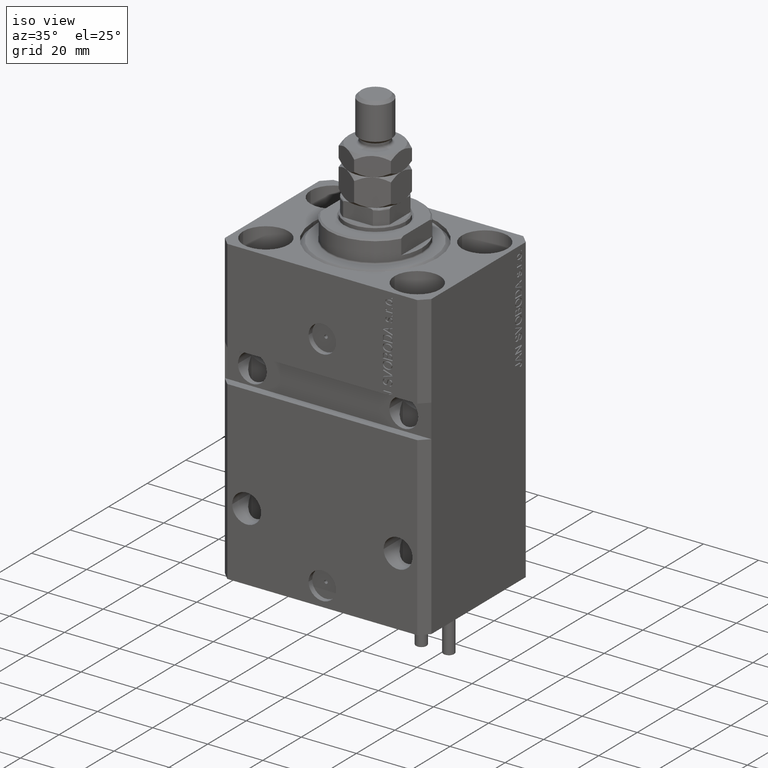
[diagram: clean part render]
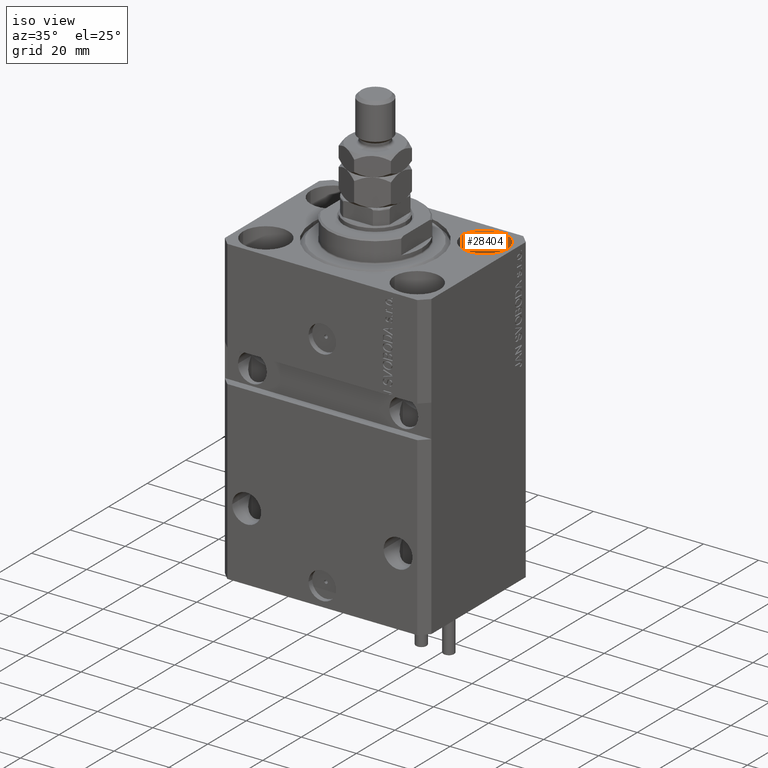
[diagram: same view with one face highlighted and labeled with its STEP entity id]
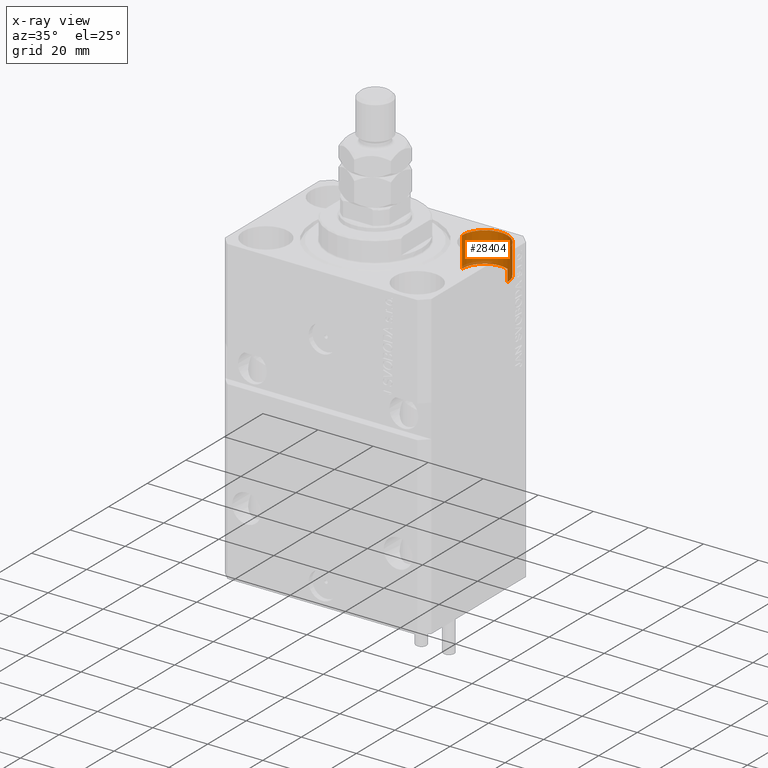
[diagram: x-ray of the same camera — body ghosted, the highlighted face saturated]
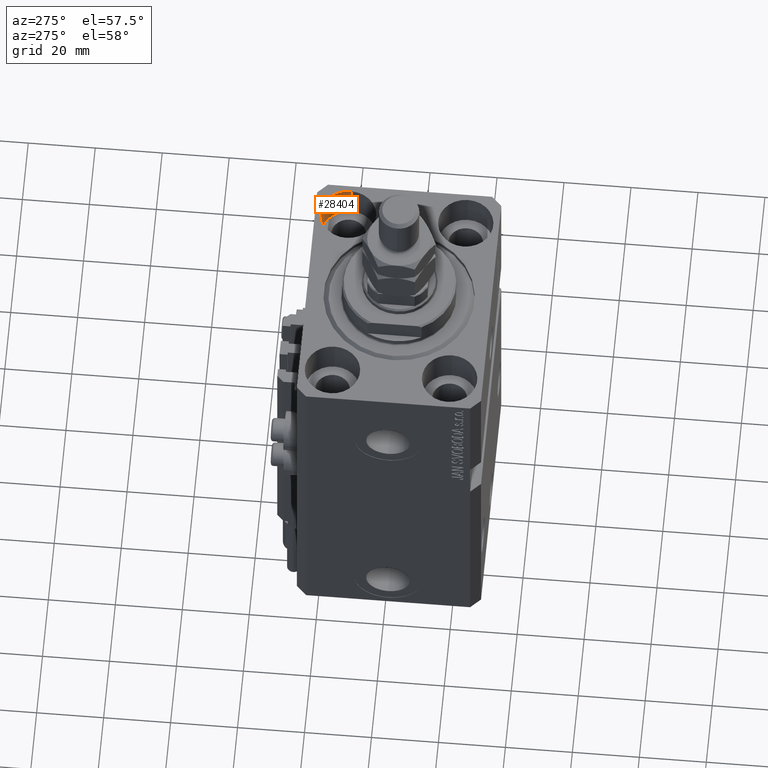
[diagram: same view with one face highlighted and labeled with its STEP entity id]
A machine part, iso view. The second image highlights one B-rep face of the part: STEP entity #28404.
The next image is the same camera in x-ray: the body ghosted, the highlighted face saturated — about 5% of this face is hidden behind the body in this view.
A second angle (auxiliary view) of the same face is appended — the face is thin or edge-on in the first view.
In plain terms, the highlighted cylindrical surface (edge-blend (fillet) strip) has radius 8.25 mm, axis along (0, 0, 1).
Its self-contained STEP definition (entity closure, byte-faithful):
#3483 = DIRECTION ( 'NONE',  ( -0.000000000000000000, -0.000000000000000000, 1.000000000000000000 ) ) ;
#4509 = VERTEX_POINT ( 'NONE', #29746 ) ;
#5850 = EDGE_CURVE ( 'NONE', #43344, #4509, #32476, .T. ) ;
#7142 = EDGE_LOOP ( 'NONE', ( #31754, #35785, #32606, #7148 ) ) ;
#7148 = ORIENTED_EDGE ( 'NONE', *, *, #5850, .T. ) ;
#8232 = DIRECTION ( 'NONE',  ( 0.000000000000000000, 0.000000000000000000, 1.000000000000000000 ) ) ;
#9071 = VERTEX_POINT ( 'NONE', #31110 ) ;
#10776 = AXIS2_PLACEMENT_3D ( 'NONE', #19181, #11134, #26980 ) ;
#11134 = DIRECTION ( 'NONE',  ( 0.000000000000000000, 0.000000000000000000, 1.000000000000000000 ) ) ;
#12043 = CARTESIAN_POINT ( 'NONE',  ( 35.74999999999999289, 17.50000000000001066, -11.00000000000000000 ) ) ;
#15679 = AXIS2_PLACEMENT_3D ( 'NONE', #47201, #8232, #34663 ) ;
#17581 = FACE_OUTER_BOUND ( 'NONE', #7142, .T. ) ;
#19181 = CARTESIAN_POINT ( 'NONE',  ( 27.49999999999999645, 17.50000000000001066, 0.000000000000000000 ) ) ;
#20169 = VECTOR ( 'NONE', #24892, 1000.000000000000000 ) ;
#20603 = DIRECTION ( 'NONE',  ( 1.000000000000000000, 0.000000000000000000, 0.000000000000000000 ) ) ;
#24892 = DIRECTION ( 'NONE',  ( -0.000000000000000000, -0.000000000000000000, 1.000000000000000000 ) ) ;
#25644 = VERTEX_POINT ( 'NONE', #12043 ) ;
#26980 = DIRECTION ( 'NONE',  ( 1.000000000000000000, 0.000000000000000000, 0.000000000000000000 ) ) ;
#28404 = ADVANCED_FACE ( 'NONE', ( #17581 ), #32930, .F. ) ;
#29746 = CARTESIAN_POINT ( 'NONE',  ( 19.25000000000000000, 17.50000000000001066, 0.000000000000000000 ) ) ;
#30128 = VECTOR ( 'NONE', #3483, 1000.000000000000000 ) ;
#31110 = CARTESIAN_POINT ( 'NONE',  ( 19.25000000000000000, 17.50000000000001066, -11.00000000000000000 ) ) ;
#31754 = ORIENTED_EDGE ( 'NONE', *, *, #48891, .F. ) ;
#32353 = AXIS2_PLACEMENT_3D ( 'NONE', #36450, #32683, #20603 ) ;
#32476 = CIRCLE ( 'NONE', #10776, 8.249999999999992895 ) ;
#32606 = ORIENTED_EDGE ( 'NONE', *, *, #33744, .T. ) ;
#32683 = DIRECTION ( 'NONE',  ( -0.000000000000000000, -0.000000000000000000, 1.000000000000000000 ) ) ;
#32930 = CYLINDRICAL_SURFACE ( 'NONE', #32353, 8.249999999999992895 ) ;
#33744 = EDGE_CURVE ( 'NONE', #25644, #43344, #36724, .T. ) ;
#34663 = DIRECTION ( 'NONE',  ( 1.000000000000000000, 0.000000000000000000, 0.000000000000000000 ) ) ;
#35785 = ORIENTED_EDGE ( 'NONE', *, *, #48251, .F. ) ;
#36450 = CARTESIAN_POINT ( 'NONE',  ( 27.49999999999999645, 17.50000000000001066, -11.00000000000000000 ) ) ;
#36724 = LINE ( 'NONE', #47265, #20169 ) ;
#37380 = CIRCLE ( 'NONE', #15679, 8.249999999999992895 ) ;
#37467 = LINE ( 'NONE', #37707, #30128 ) ;
#37707 = CARTESIAN_POINT ( 'NONE',  ( 19.25000000000000000, 17.50000000000001066, -11.00000000000000000 ) ) ;
#43344 = VERTEX_POINT ( 'NONE', #44861 ) ;
#44861 = CARTESIAN_POINT ( 'NONE',  ( 35.74999999999999289, 17.50000000000001066, 0.000000000000000000 ) ) ;
#47201 = CARTESIAN_POINT ( 'NONE',  ( 27.49999999999999645, 17.50000000000001066, -11.00000000000000000 ) ) ;
#47265 = CARTESIAN_POINT ( 'NONE',  ( 35.74999999999999289, 17.50000000000001066, -11.00000000000000000 ) ) ;
#48251 = EDGE_CURVE ( 'NONE', #25644, #9071, #37380, .T. ) ;
#48891 = EDGE_CURVE ( 'NONE', #9071, #4509, #37467, .T. ) ;